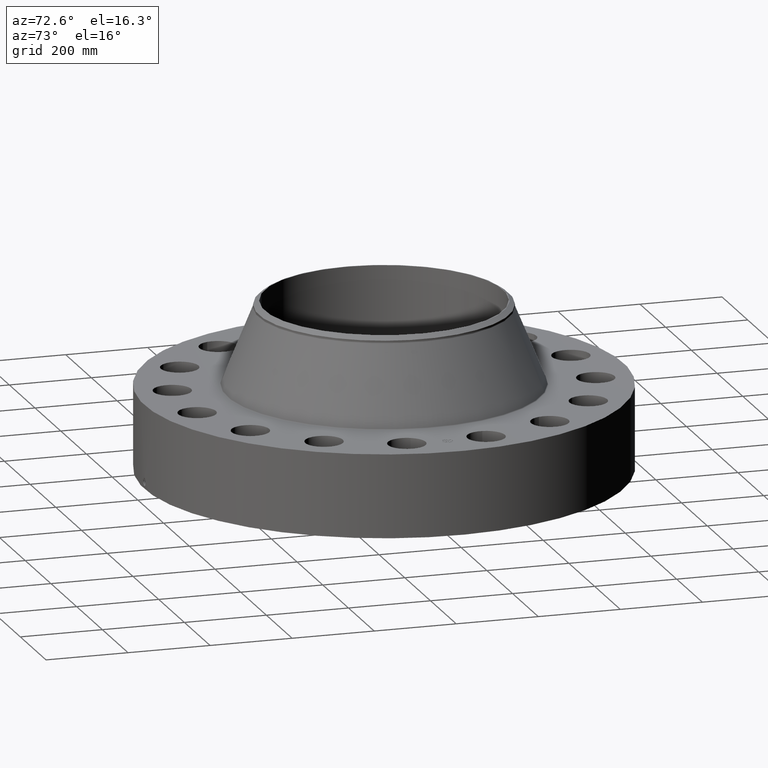
[diagram: clean part render]
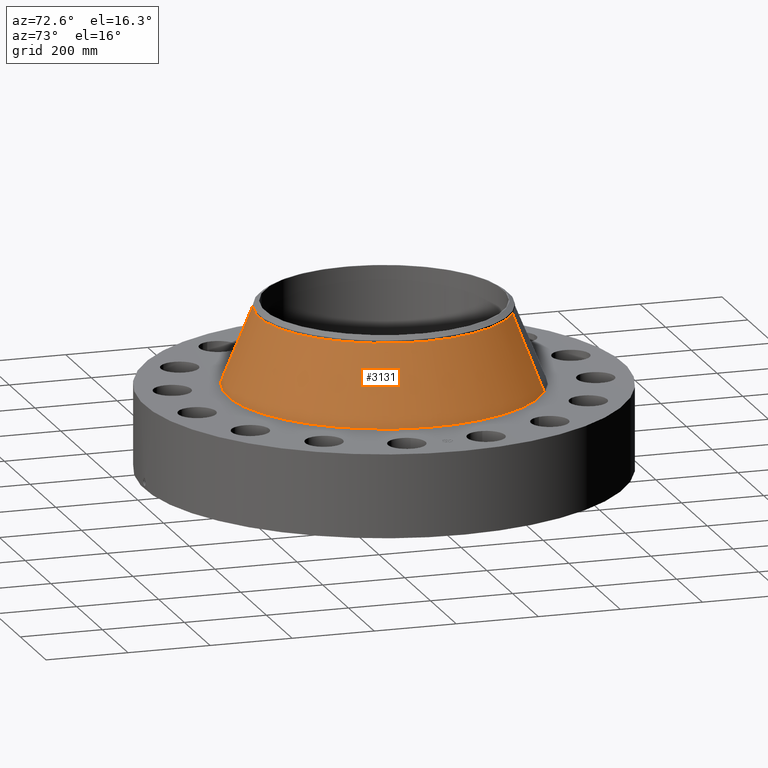
[diagram: same view with one face highlighted and labeled with its STEP entity id]
A machine part, auxiliary view. The second image highlights one B-rep face of the part: STEP entity #3131.
In plain terms, the highlighted conical surface has half-angle 22.087 deg.
Its self-contained STEP definition (entity closure, byte-faithful):
#2354=AXIS2_PLACEMENT_3D('Circle Axis2P3D',#2352,#2353,$) ;
#3104=AXIS2_PLACEMENT_3D('Cone Axis2P3D',#3101,#3102,#3103) ;
#3115=AXIS2_PLACEMENT_3D('Circle Axis2P3D',#3113,#3114,$) ;
#2349=CARTESIAN_POINT('Vertex',(7.1768157043,13.1370730277,8.32487852866)) ;
#2352=CARTESIAN_POINT('Axis2P3D Location',(0.,0.,8.32487852866)) ;
#2356=CARTESIAN_POINT('Vertex',(-7.1768157043,-13.1370730277,8.32487852866)) ;
#3101=CARTESIAN_POINT('Axis2P3D Location',(0.,0.,15.6429612083)) ;
#3106=CARTESIAN_POINT('Line Origine',(6.46496108379,11.8340318852,11.9839198685)) ;
#3110=CARTESIAN_POINT('Vertex',(5.75310646327,10.5309907427,15.6429612083)) ;
#3113=CARTESIAN_POINT('Axis2P3D Location',(0.,0.,15.6429612083)) ;
#3117=CARTESIAN_POINT('Vertex',(-5.75310646327,-10.5309907427,15.6429612083)) ;
#3120=CARTESIAN_POINT('Line Origine',(-6.46496108379,-11.8340318852,11.9839198685)) ;
#2353=DIRECTION('Axis2P3D Direction',(0.,0.,-0.0393700787402)) ;
#3102=DIRECTION('Axis2P3D Direction',(0.,0.,-0.0393700787402)) ;
#3103=DIRECTION('Axis2P3D XDirection',(-0.0188750212049,-0.0345504945626,0.)) ;
#3107=DIRECTION('Vector Direction',(0.00709723940825,0.0129914095949,-0.0364808932117)) ;
#3114=DIRECTION('Axis2P3D Direction',(0.,0.,-0.0393700787402)) ;
#3121=DIRECTION('Vector Direction',(-0.00709723940825,-0.0129914095949,-0.0364808932117)) ;
#3108=VECTOR('Line Direction',#3107,0.0393700787402) ;
#3122=VECTOR('Line Direction',#3121,0.0393700787402) ;
#3126=ORIENTED_EDGE('',*,*,#2358,.F.) ;
#3127=ORIENTED_EDGE('',*,*,#3112,.T.) ;
#3128=ORIENTED_EDGE('',*,*,#3119,.T.) ;
#3129=ORIENTED_EDGE('',*,*,#3124,.F.) ;
#3131=ADVANCED_FACE('PartBody',(#3130),#3105,.T.) ;
#2355=CIRCLE('generated circle',#2354,14.9696149379) ;
#3116=CIRCLE('generated circle',#3115,12.) ;
#3105=CONICAL_SURFACE('Cone',#3104,12.,0.385488962437) ;
#2358=EDGE_CURVE('',#2350,#2357,#2355,.T.) ;
#3112=EDGE_CURVE('',#2350,#3111,#3109,.F.) ;
#3119=EDGE_CURVE('',#3111,#3118,#3116,.T.) ;
#3124=EDGE_CURVE('',#2357,#3118,#3123,.F.) ;
#3125=EDGE_LOOP('',(#3126,#3127,#3128,#3129)) ;
#3130=FACE_OUTER_BOUND('',#3125,.T.) ;
#3109=LINE('Line',#3106,#3108) ;
#3123=LINE('Line',#3120,#3122) ;
#2350=VERTEX_POINT('',#2349) ;
#2357=VERTEX_POINT('',#2356) ;
#3111=VERTEX_POINT('',#3110) ;
#3118=VERTEX_POINT('',#3117) ;